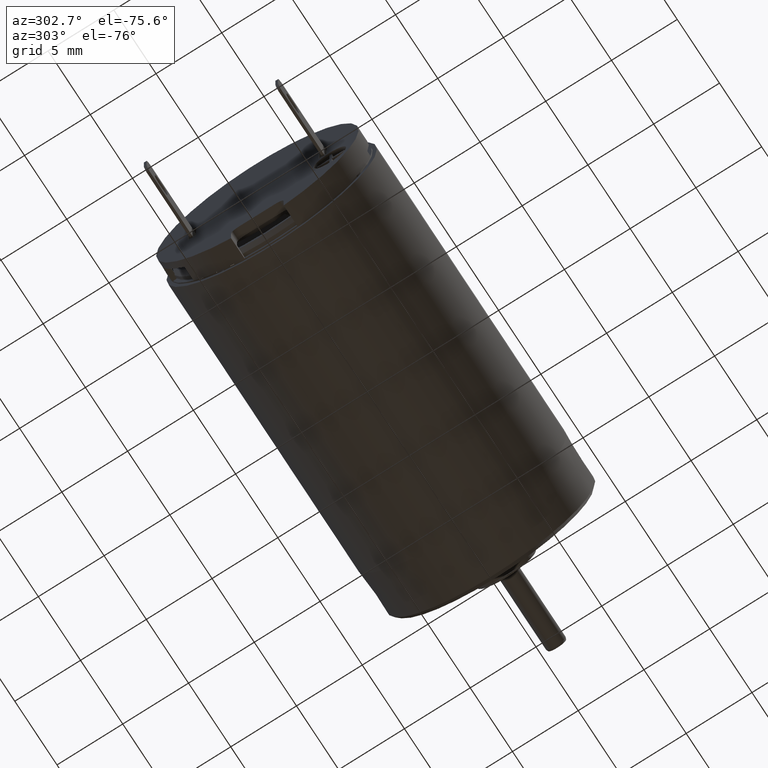
[diagram: clean part render]
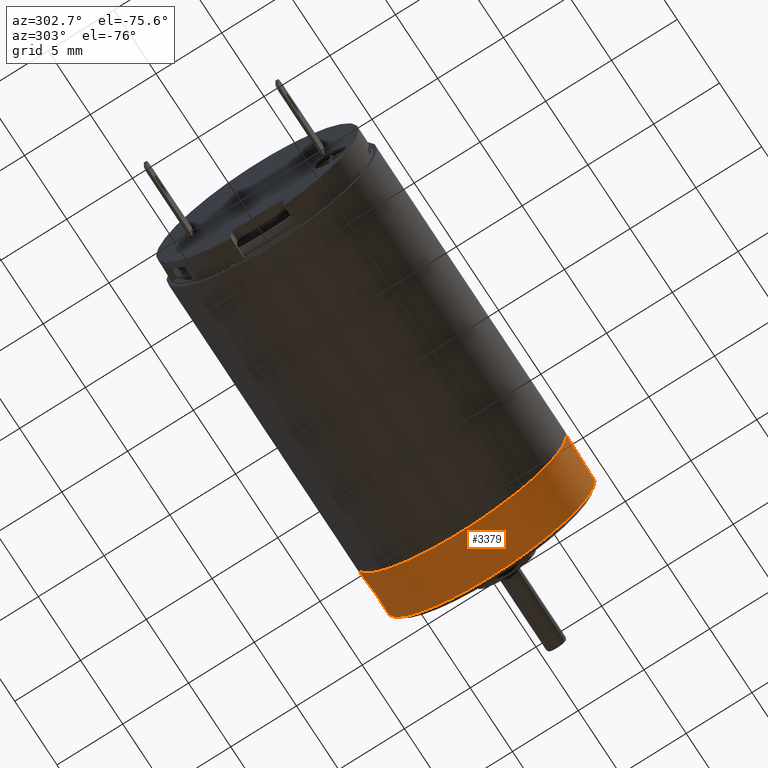
[diagram: same view with one face highlighted and labeled with its STEP entity id]
A machine part, auxiliary view. The second image highlights one B-rep face of the part: STEP entity #3379.
In plain terms, the highlighted conical surface has half-angle 1.5 deg.
Its self-contained STEP definition (entity closure, byte-faithful):
#444=CARTESIAN_POINT('',(-2.998988858192E-1,0.E0,0.E0));
#445=DIRECTION('',(1.E0,0.E0,0.E0));
#446=DIRECTION('',(0.E0,-1.E0,0.E0));
#447=AXIS2_PLACEMENT_3D('',#444,#445,#446);
#449=CARTESIAN_POINT('',(-2.998988858192E-1,0.E0,0.E0));
#450=DIRECTION('',(1.E0,0.E0,0.E0));
#451=DIRECTION('',(0.E0,0.E0,-1.E0));
#452=AXIS2_PLACEMENT_3D('',#449,#450,#451);
#454=DIRECTION('',(-9.996573333624E-1,2.617662802545E-2,0.E0));
#455=VECTOR('',#454,3.541315739548E0);
#456=CARTESIAN_POINT('',(-2.998977512087E-1,7.907300295165E0,0.E0));
#457=LINE('',#456,#455);
#458=CARTESIAN_POINT('',(-3.84E0,0.E0,0.E0));
#459=DIRECTION('',(-1.E0,0.E0,0.E0));
#460=DIRECTION('',(0.E0,1.E0,0.E0));
#461=AXIS2_PLACEMENT_3D('',#458,#459,#460);
#463=DIRECTION('',(9.996573333624E-1,2.617662802545E-2,1.941264884849E-11));
#464=VECTOR('',#463,3.541315739548E0);
#465=CARTESIAN_POINT('',(-3.84E0,-8.E0,-6.874776575907E-11));
#466=LINE('',#465,#464);
#2200=CARTESIAN_POINT('',(-3.84E0,8.E0,0.E0));
#2201=CARTESIAN_POINT('',(-3.84E0,-8.E0,0.E0));
#2202=VERTEX_POINT('',#2200);
#2203=VERTEX_POINT('',#2201);
#2204=CARTESIAN_POINT('',(-2.998966165983E-1,-7.907301400453E0,0.E0));
#2205=CARTESIAN_POINT('',(-2.998966165983E-1,7.907301400453E0,0.E0));
#2206=VERTEX_POINT('',#2204);
#2207=VERTEX_POINT('',#2205);
#2212=CARTESIAN_POINT('',(-2.998988858192E-1,-3.789722112910E-14,
-7.907299189877E0));
#2213=VERTEX_POINT('',#2212);
#3367=CARTESIAN_POINT('',(-2.069949442910E0,0.E0,0.E0));
#3368=DIRECTION('',(-1.E0,0.E0,0.E0));
#3369=DIRECTION('',(0.E0,1.E0,0.E0));
#3370=AXIS2_PLACEMENT_3D('',#3367,#3368,#3369);
#3371=CONICAL_SURFACE('',#3370,7.953649594939E0,1.500000000001E0);
#3372=ORIENTED_EDGE('',*,*,#3356,.T.);
#3373=ORIENTED_EDGE('',*,*,#3354,.T.);
#3374=ORIENTED_EDGE('',*,*,#3329,.T.);
#3375=ORIENTED_EDGE('',*,*,#3301,.T.);
#3376=ORIENTED_EDGE('',*,*,#3326,.T.);
#3377=EDGE_LOOP('',(#3372,#3373,#3374,#3375,#3376));
#3378=FACE_OUTER_BOUND('',#3377,.F.);
#3379=ADVANCED_FACE('',(#3378),#3371,.T.);
#448=CIRCLE('',#447,7.907299189877E0);
#453=CIRCLE('',#452,7.907299189877E0);
#462=CIRCLE('',#461,8.E0);
#3301=EDGE_CURVE('',#2202,#2203,#462,.T.);
#3326=EDGE_CURVE('',#2203,#2206,#466,.T.);
#3329=EDGE_CURVE('',#2207,#2202,#457,.T.);
#3354=EDGE_CURVE('',#2213,#2207,#453,.T.);
#3356=EDGE_CURVE('',#2206,#2213,#448,.T.);